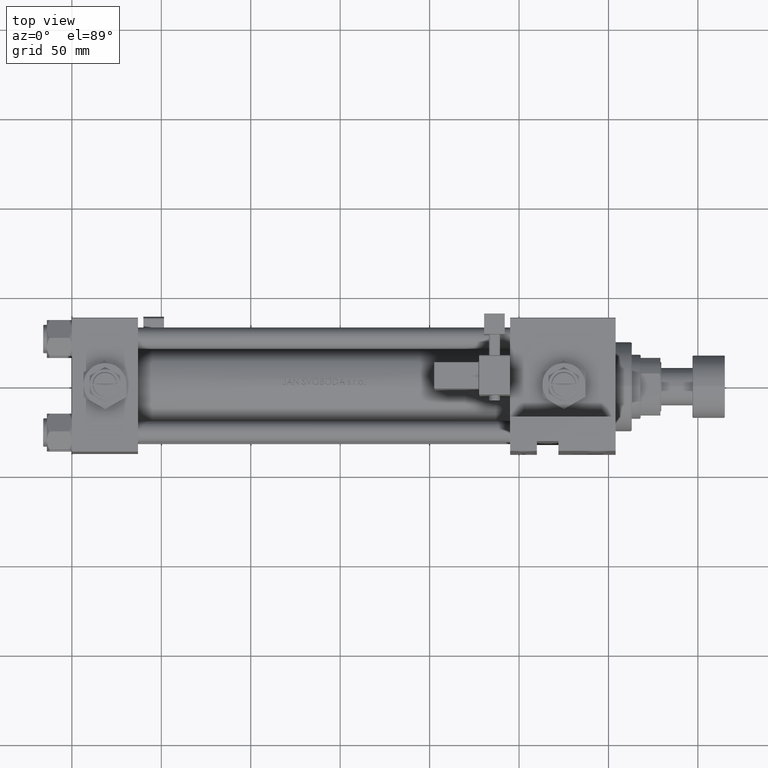
[diagram: clean part render]
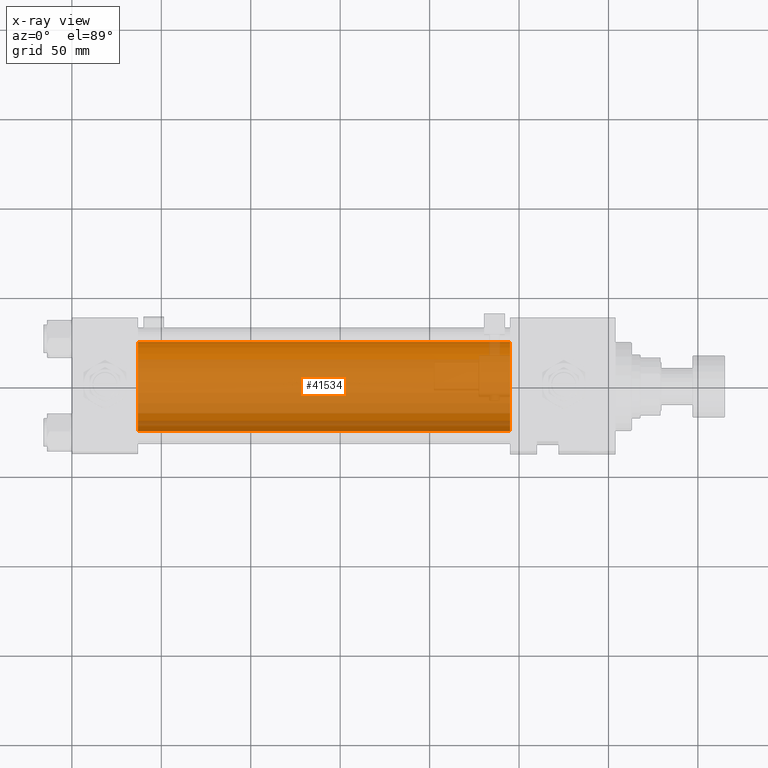
[diagram: x-ray — body ghosted, one internal face saturated and labeled with its STEP entity id]
A machine part, top view, then the same camera in x-ray: the body is ghosted and one INTERNAL B-rep face — a face not visible from any outside direction — is saturated and labeled: STEP entity #41534.
In plain terms, the highlighted cylindrical surface (partial cylindrical patch) has radius 25 mm, axis along (-1, -0, 0).
Its self-contained STEP definition (entity closure, byte-faithful):
#1211 = EDGE_CURVE ( 'NONE', #3524, #23980, #33596, .T. ) ;
#1345 = EDGE_CURVE ( 'NONE', #45785, #23980, #52361, .T. ) ;
#3524 = VERTEX_POINT ( 'NONE', #47242 ) ;
#5460 = ORIENTED_EDGE ( 'NONE', *, *, #40490, .T. ) ;
#5937 = LINE ( 'NONE', #30048, #39952 ) ;
#6572 = ORIENTED_EDGE ( 'NONE', *, *, #1345, .F. ) ;
#6615 = ORIENTED_EDGE ( 'NONE', *, *, #1211, .T. ) ;
#12681 = CARTESIAN_POINT ( 'NONE',  ( 245.0000000000000000, 6.123233995736772199E-17, 24.50000000000000000 ) ) ;
#13198 = ORIENTED_EDGE ( 'NONE', *, *, #21513, .F. ) ;
#13440 = CARTESIAN_POINT ( 'NONE',  ( 37.00000000000000000, 3.122849337825749828E-15, -25.50000000000000355 ) ) ;
#13615 = DIRECTION ( 'NONE',  ( -1.000000000000000000, -0.000000000000000000, -0.000000000000000000 ) ) ;
#14793 = DIRECTION ( 'NONE',  ( 0.000000000000000000, 0.000000000000000000, -1.000000000000000000 ) ) ;
#16126 = CARTESIAN_POINT ( 'NONE',  ( 245.0000000000000000, 6.123233995736772199E-17, -0.5000000000000004441 ) ) ;
#17959 = DIRECTION ( 'NONE',  ( 0.000000000000000000, 0.000000000000000000, -1.000000000000000000 ) ) ;
#19316 = CYLINDRICAL_SURFACE ( 'NONE', #22468, 25.00000000000000000 ) ;
#21513 = EDGE_CURVE ( 'NONE', #25412, #45785, #5937, .T. ) ;
#22468 = AXIS2_PLACEMENT_3D ( 'NONE', #16126, #43690, #39455 ) ;
#22765 = CARTESIAN_POINT ( 'NONE',  ( 245.0000000000000000, 6.123233995736772199E-17, -0.5000000000000004441 ) ) ;
#23296 = FACE_OUTER_BOUND ( 'NONE', #36014, .T. ) ;
#23980 = VERTEX_POINT ( 'NONE', #52022 ) ;
#25412 = VERTEX_POINT ( 'NONE', #35980 ) ;
#28340 = AXIS2_PLACEMENT_3D ( 'NONE', #22765, #38926, #14793 ) ;
#30048 = CARTESIAN_POINT ( 'NONE',  ( 245.0000000000000000, 3.122849337825749828E-15, -25.50000000000000355 ) ) ;
#33596 = LINE ( 'NONE', #12681, #49824 ) ;
#35980 = CARTESIAN_POINT ( 'NONE',  ( 245.0000000000000000, 3.122849337825749828E-15, -25.50000000000000355 ) ) ;
#36014 = EDGE_LOOP ( 'NONE', ( #13198, #5460, #6615, #6572 ) ) ;
#37120 = AXIS2_PLACEMENT_3D ( 'NONE', #38106, #42347, #17959 ) ;
#38106 = CARTESIAN_POINT ( 'NONE',  ( 37.00000000000000000, 6.123233995736772199E-17, -0.5000000000000004441 ) ) ;
#38926 = DIRECTION ( 'NONE',  ( 1.000000000000000000, 0.000000000000000000, 0.000000000000000000 ) ) ;
#39455 = DIRECTION ( 'NONE',  ( 0.000000000000000000, 0.000000000000000000, 1.000000000000000000 ) ) ;
#39952 = VECTOR ( 'NONE', #13615, 1000.000000000000000 ) ;
#40490 = EDGE_CURVE ( 'NONE', #25412, #3524, #41862, .T. ) ;
#40784 = DIRECTION ( 'NONE',  ( -1.000000000000000000, -0.000000000000000000, -0.000000000000000000 ) ) ;
#41534 = ADVANCED_FACE ( 'NONE', ( #23296 ), #19316, .F. ) ;
#41862 = CIRCLE ( 'NONE', #28340, 25.00000000000000000 ) ;
#42347 = DIRECTION ( 'NONE',  ( 1.000000000000000000, 0.000000000000000000, 0.000000000000000000 ) ) ;
#43690 = DIRECTION ( 'NONE',  ( -1.000000000000000000, -0.000000000000000000, -0.000000000000000000 ) ) ;
#45785 = VERTEX_POINT ( 'NONE', #13440 ) ;
#47242 = CARTESIAN_POINT ( 'NONE',  ( 245.0000000000000000, 6.123233995736772199E-17, 24.50000000000000000 ) ) ;
#49824 = VECTOR ( 'NONE', #40784, 1000.000000000000000 ) ;
#52022 = CARTESIAN_POINT ( 'NONE',  ( 37.00000000000000000, 6.123233995736772199E-17, 24.50000000000000000 ) ) ;
#52361 = CIRCLE ( 'NONE', #37120, 25.00000000000000000 ) ;